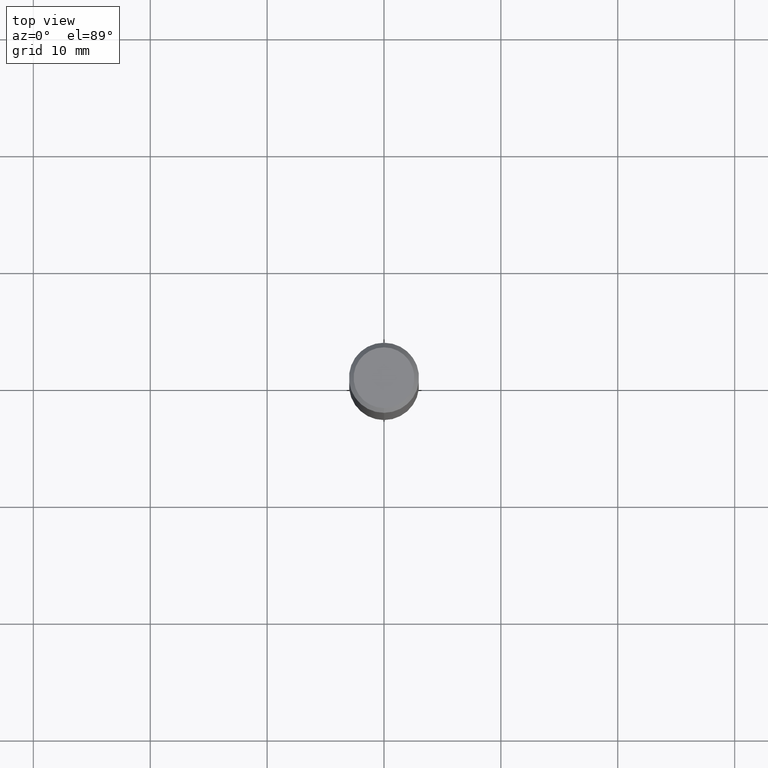
[diagram: clean part render]
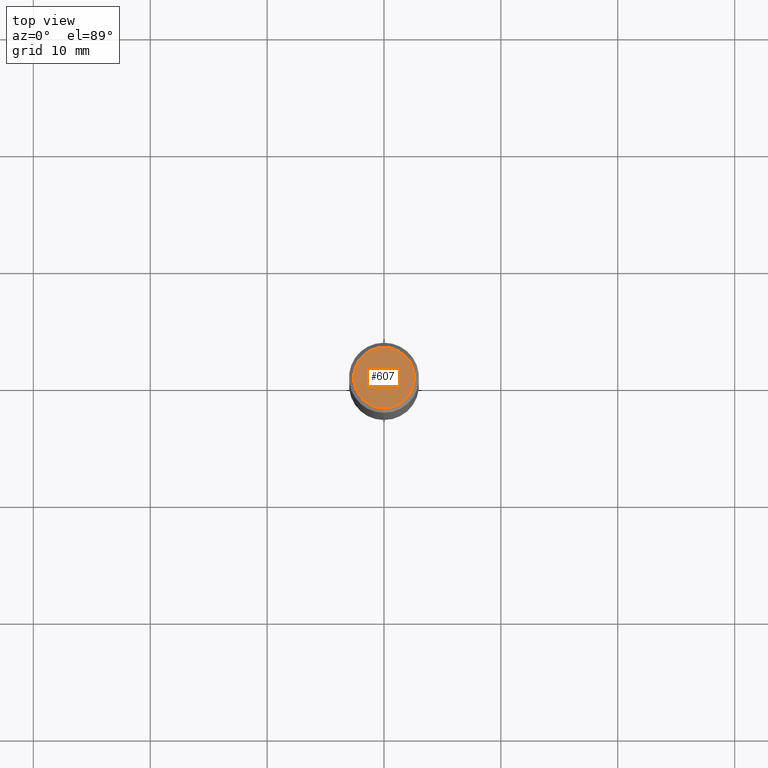
[diagram: same view with one face highlighted and labeled with its STEP entity id]
A machine part, top view. The second image highlights one B-rep face of the part: STEP entity #607.
In plain terms, the highlighted planar face has unit normal (-0, 0, 1).
Its self-contained STEP definition (entity closure, byte-faithful):
#421=VERTEX_POINT('',#929);
#485=VERTEX_POINT('',#999);
#607=ADVANCED_FACE('',(#1134),#1135,.T.);
#655=EDGE_CURVE('',#485,#421,#1184,.T.);
#721=EDGE_CURVE('',#421,#485,#1254,.T.);
#929=CARTESIAN_POINT('',(3.18397651993818E-016,-2.6,0.0));
#999=CARTESIAN_POINT('',(0.0,2.6,0.0));
#1134=FACE_OUTER_BOUND('',#4435,.T.);
#1135=PLANE('',#4436);
#1184=CIRCLE('',#4669,2.6);
#1254=CIRCLE('',#5107,2.6);
#4435=EDGE_LOOP('',(#5589,#5590));
#4436=AXIS2_PLACEMENT_3D('',#5591,#5592,#5593);
#4669=AXIS2_PLACEMENT_3D('',#5622,#5623,#5624);
#5107=AXIS2_PLACEMENT_3D('',#5681,#5682,#5683);
#5589=ORIENTED_EDGE('',*,*,#655,.F.);
#5590=ORIENTED_EDGE('',*,*,#721,.F.);
#5591=CARTESIAN_POINT('',(0.0,1.3,0.0));
#5592=DIRECTION('',(-0.0,0.0,1.0));
#5593=DIRECTION('',(0.0,-1.0,0.0));
#5622=CARTESIAN_POINT('',(0.0,0.0,0.0));
#5623=DIRECTION('',(0.0,0.0,-1.0));
#5624=DIRECTION('',(0.0,1.0,0.0));
#5681=CARTESIAN_POINT('',(0.0,0.0,0.0));
#5682=DIRECTION('',(0.0,0.0,-1.0));
#5683=DIRECTION('',(0.0,1.0,0.0));